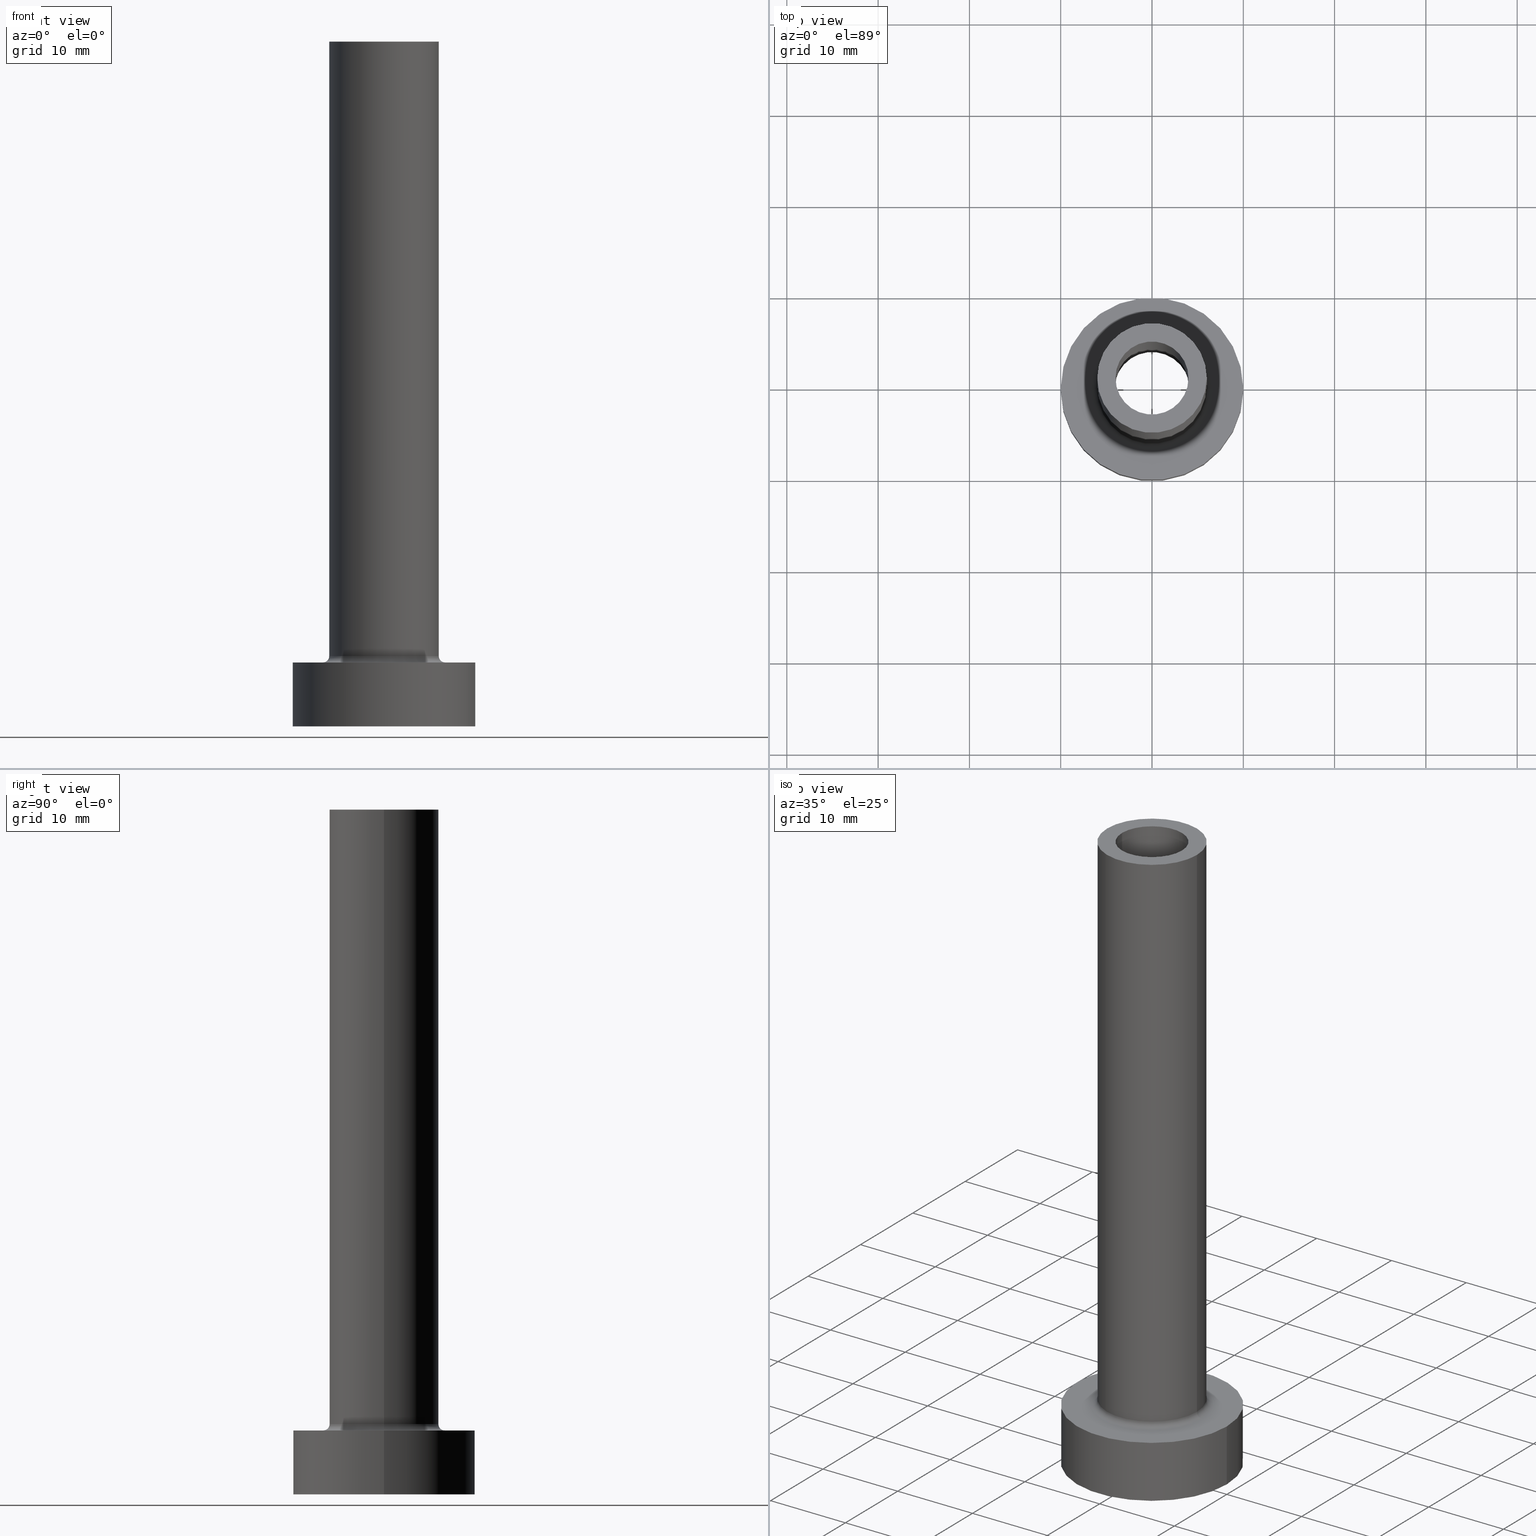
[diagram: canonical four-view strip — front | top / right | iso, engineering-drawing reading convention]
A machine part, canonical four-view strip (front | top / right | iso — engineering-drawing reading convention). The complete STEP part file that produces these views, byte-faithful:
ISO-10303-21;
HEADER;
FILE_DESCRIPTION (( 'STEP AP203' ),
    '1' );
FILE_NAME ('648c.STEP',
    '2023-02-13T12:47:31',
    ( '' ),
    ( '' ),
    'SwSTEP 2.0',
    'SolidWorks 2019',
    '' );
FILE_SCHEMA (( 'CONFIG_CONTROL_DESIGN' ));
ENDSEC;

DATA;
#1 = AXIS2_PLACEMENT_3D ( 'NONE', #377, #356, #352 ) ;
#2 = VERTEX_POINT ( 'NONE', #180 ) ;
#3 = ORIENTED_EDGE ( 'NONE', *, *, #368, .T. ) ;
#4 = ADVANCED_FACE ( 'NONE', ( #292, #119 ), #12, .T. ) ;
#5 = ORIENTED_EDGE ( 'NONE', *, *, #26, .T. ) ;
#6 = CARTESIAN_POINT ( 'NONE',  ( 0.000000000000000000, 0.000000000000000000, 41.73797256769670838 ) ) ;
#7 = ORIENTED_EDGE ( 'NONE', *, *, #275, .F. ) ;
#8 = DATE_TIME_ROLE ( 'creation_date' ) ;
#9 = VERTEX_POINT ( 'NONE', #399 ) ;
#10 = VERTEX_POINT ( 'NONE', #187 ) ;
#11 = APPROVAL_STATUS ( 'not_yet_approved' ) ;
#12 = PLANE ( 'NONE',  #133 ) ;
#13 = AXIS2_PLACEMENT_3D ( 'NONE', #136, #22, #405 ) ;
#14 = ORIENTED_EDGE ( 'NONE', *, *, #275, .T. ) ;
#15 = PRODUCT_RELATED_PRODUCT_CATEGORY ( 'detail', '', ( #30 ) ) ;
#16 = DIRECTION ( 'NONE',  ( 0.000000000000000000, 0.000000000000000000, -1.000000000000000000 ) ) ;
#17 = EDGE_CURVE ( 'NONE', #179, #93, #357, .T. ) ;
#18 = LINE ( 'NONE', #234, #20 ) ;
#19 = VERTEX_POINT ( 'NONE', #330 ) ;
#20 = VECTOR ( 'NONE', #371, 1000.000000000000000 ) ;
#21 = CC_DESIGN_APPROVAL ( #288, ( #74 ) ) ;
#22 = DIRECTION ( 'NONE',  ( 0.000000000000000000, 0.000000000000000000, 1.000000000000000000 ) ) ;
#23 = CARTESIAN_POINT ( 'NONE',  ( 4.000000000000000000, 4.898587196589411843E-16, 75.00000000000001421 ) ) ;
#24 = APPLICATION_CONTEXT ( 'configuration controlled 3d designs of mechanical parts and assemblies' ) ;
#25 = DIRECTION ( 'NONE',  ( -0.000000000000000000, -0.000000000000000000, -1.000000000000000000 ) ) ;
#26 = EDGE_CURVE ( 'NONE', #61, #53, #383, .T. ) ;
#27 = DIRECTION ( 'NONE',  ( -0.000000000000000000, -0.000000000000000000, -1.000000000000000000 ) ) ;
#28 = DIRECTION ( 'NONE',  ( 1.000000000000000000, 0.000000000000000000, 0.000000000000000000 ) ) ;
#29 = EDGE_CURVE ( 'NONE', #9, #10, #445, .T. ) ;
#30 = PRODUCT ( '648c', '648c', '', ( #115 ) ) ;
#31 = ADVANCED_BREP_SHAPE_REPRESENTATION ( '648c', ( #447, #396 ), #319 ) ;
#32 = CARTESIAN_POINT ( 'NONE',  ( 0.000000000000000000, 0.000000000000000000, 7.000000000000000000 ) ) ;
#33 = CIRCLE ( 'NONE', #325, 10.00000000000000000 ) ;
#34 = EDGE_LOOP ( 'NONE', ( #459, #420 ) ) ;
#35 = CARTESIAN_POINT ( 'NONE',  ( -4.000000000000000000, 0.000000000000000000, 75.00000000000001421 ) ) ;
#36 = CLOSED_SHELL ( 'NONE', ( #96, #181, #170, #139, #328, #135, #294, #49, #355, #4, #322, #417, #39, #316 ) ) ;
#37 = CARTESIAN_POINT ( 'NONE',  ( 0.000000000000000000, 0.000000000000000000, 30.00000000000001421 ) ) ;
#38 = DIRECTION ( 'NONE',  ( 0.000000000000000000, 0.000000000000000000, -1.000000000000000000 ) ) ;
#39 = ADVANCED_FACE ( 'NONE', ( #261, #431 ), #158, .F. ) ;
#40 = ORIENTED_EDGE ( 'NONE', *, *, #303, .F. ) ;
#41 = ORIENTED_EDGE ( 'NONE', *, *, #441, .T. ) ;
#42 = AXIS2_PLACEMENT_3D ( 'NONE', #429, #321, #220 ) ;
#43 = PERSON_AND_ORGANIZATION ( #148, #67 ) ;
#44 = CIRCLE ( 'NONE', #353, 10.00000000000000000 ) ;
#45 = ORIENTED_EDGE ( 'NONE', *, *, #103, .F. ) ;
#46 = DIRECTION ( 'NONE',  ( -1.000000000000000000, 0.000000000000000000, 0.000000000000000000 ) ) ;
#47 = DIRECTION ( 'NONE',  ( 0.000000000000000000, 0.000000000000000000, 1.000000000000000000 ) ) ;
#48 = ORIENTED_EDGE ( 'NONE', *, *, #26, .F. ) ;
#49 = ADVANCED_FACE ( 'NONE', ( #428, #191 ), #156, .F. ) ;
#50 = CALENDAR_DATE ( 2023, 13, 2 ) ;
#51 = ORIENTED_EDGE ( 'NONE', *, *, #361, .F. ) ;
#52 = ORIENTED_EDGE ( 'NONE', *, *, #235, .T. ) ;
#53 = VERTEX_POINT ( 'NONE', #389 ) ;
#54 = TOROIDAL_SURFACE ( 'NONE', #13, 6.700000000000001066, 0.6999999999999999556 ) ;
#55 = ORIENTED_EDGE ( 'NONE', *, *, #69, .T. ) ;
#56 = APPROVAL_STATUS ( 'not_yet_approved' ) ;
#57 = CARTESIAN_POINT ( 'NONE',  ( 4.150000000000000355, 5.082284216461515156E-16, 30.00000000000001421 ) ) ;
#58 = DIRECTION ( 'NONE',  ( -0.000000000000000000, -0.000000000000000000, -1.000000000000000000 ) ) ;
#59 = CARTESIAN_POINT ( 'NONE',  ( -10.00000000000000000, 0.000000000000000000, 7.000000000000000000 ) ) ;
#60 = APPROVAL_PERSON_ORGANIZATION ( #118, #288, #154 ) ;
#61 = VERTEX_POINT ( 'NONE', #92 ) ;
#62 = CARTESIAN_POINT ( 'NONE',  ( 0.000000000000000000, 0.000000000000000000, 41.73797256769670838 ) ) ;
#63 = EDGE_CURVE ( 'NONE', #179, #279, #219, .T. ) ;
#64 = DIRECTION ( 'NONE',  ( -0.000000000000000000, -0.000000000000000000, -1.000000000000000000 ) ) ;
#65 = ORIENTED_EDGE ( 'NONE', *, *, #212, .T. ) ;
#66 = DIRECTION ( 'NONE',  ( 1.000000000000000000, 0.000000000000000000, 0.000000000000000000 ) ) ;
#67 = ORGANIZATION ( 'NEUR�EN�', 'NEUR�EN�', '' ) ;
#68 = DIRECTION ( 'NONE',  ( -0.000000000000000000, -0.000000000000000000, -1.000000000000000000 ) ) ;
#69 = EDGE_CURVE ( 'NONE', #279, #385, #99, .T. ) ;
#70 = FACE_OUTER_BOUND ( 'NONE', #289, .T. ) ;
#71 = CARTESIAN_POINT ( 'NONE',  ( 0.000000000000000000, 0.000000000000000000, 7.699999999999998401 ) ) ;
#72 = AXIS2_PLACEMENT_3D ( 'NONE', #454, #141, #167 ) ;
#73 = ORIENTED_EDGE ( 'NONE', *, *, #69, .F. ) ;
#74 = PRODUCT_DEFINITION_FORMATION_WITH_SPECIFIED_SOURCE ( 'LIBOVOLN�', '', #30, .NOT_KNOWN. ) ;
#75 = DIRECTION ( 'NONE',  ( 0.000000000000000000, 0.000000000000000000, 1.000000000000000000 ) ) ;
#76 = EDGE_CURVE ( 'NONE', #93, #385, #365, .T. ) ;
#77 =( LENGTH_UNIT ( ) NAMED_UNIT ( * ) SI_UNIT ( .MILLI., .METRE. ) );
#78 = VERTEX_POINT ( 'NONE', #57 ) ;
#79 = EDGE_LOOP ( 'NONE', ( #73, #124, #120, #174 ) ) ;
#80 = COORDINATED_UNIVERSAL_TIME_OFFSET ( 1, 0, .AHEAD. ) ;
#81 = DIRECTION ( 'NONE',  ( 1.000000000000000000, 0.000000000000000000, 0.000000000000000000 ) ) ;
#82 = AXIS2_PLACEMENT_3D ( 'NONE', #249, #171, #281 ) ;
#83 = DIRECTION ( 'NONE',  ( 0.000000000000000000, 0.000000000000000000, 1.000000000000000000 ) ) ;
#84 = LOCAL_TIME ( 13, 47, 31.00000000000000000, #80 ) ;
#85 = EDGE_LOOP ( 'NONE', ( #285, #3, #359, #260 ) ) ;
#86 = CC_DESIGN_PERSON_AND_ORGANIZATION_ASSIGNMENT ( #229, #143, ( #74 ) ) ;
#87 = DIRECTION ( 'NONE',  ( 1.000000000000000000, 0.000000000000000000, 0.000000000000000000 ) ) ;
#88 = DIRECTION ( 'NONE',  ( 0.000000000000000000, 0.000000000000000000, 1.000000000000000000 ) ) ;
#89 = CC_DESIGN_DATE_AND_TIME_ASSIGNMENT ( #237, #448, ( #397 ) ) ;
#90 = AXIS2_PLACEMENT_3D ( 'NONE', #201, #238, #126 ) ;
#91 = PERSON_AND_ORGANIZATION_ROLE ( 'creator' ) ;
#92 = CARTESIAN_POINT ( 'NONE',  ( -4.000000000000000000, 0.000000000000000000, 30.00000000000001421 ) ) ;
#93 = VERTEX_POINT ( 'NONE', #202 ) ;
#94 = DIRECTION ( 'NONE',  ( 1.000000000000000000, 0.000000000000000000, 0.000000000000000000 ) ) ;
#95 = CIRCLE ( 'NONE', #1, 4.000000000000000000 ) ;
#96 = ADVANCED_FACE ( 'NONE', ( #100 ), #414, .F. ) ;
#97 = DIRECTION ( 'NONE',  ( -0.000000000000000000, -0.000000000000000000, -1.000000000000000000 ) ) ;
#98 = DATE_AND_TIME ( #266, #439 ) ;
#99 = CIRCLE ( 'NONE', #446, 0.7000000000000000666 ) ;
#100 = FACE_OUTER_BOUND ( 'NONE', #324, .T. ) ;
#101 = DIRECTION ( 'NONE',  ( 1.000000000000000000, 0.000000000000000000, 0.000000000000000000 ) ) ;
#102 = CIRCLE ( 'NONE', #304, 4.150000000000000355 ) ;
#103 = EDGE_CURVE ( 'NONE', #393, #2, #284, .T. ) ;
#104 = ORIENTED_EDGE ( 'NONE', *, *, #235, .F. ) ;
#105 = FACE_OUTER_BOUND ( 'NONE', #379, .T. ) ;
#106 = CARTESIAN_POINT ( 'NONE',  ( -6.700000000000001066, 8.205133554287267548E-16, 6.999999999999999112 ) ) ;
#107 = DIRECTION ( 'NONE',  ( 1.000000000000000000, 0.000000000000000000, 0.000000000000000000 ) ) ;
#108 = DIRECTION ( 'NONE',  ( 0.000000000000000000, 0.000000000000000000, 1.000000000000000000 ) ) ;
#109 = DIRECTION ( 'NONE',  ( 0.000000000000000000, 0.000000000000000000, 1.000000000000000000 ) ) ;
#110 = DIRECTION ( 'NONE',  ( 0.000000000000000000, 0.000000000000000000, -1.000000000000000000 ) ) ;
#111 = EDGE_CURVE ( 'NONE', #19, #9, #232, .T. ) ;
#112 = AXIS2_PLACEMENT_3D ( 'NONE', #198, #140, #276 ) ;
#113 = APPROVAL_DATE_TIME ( #329, #280 ) ;
#114 = CARTESIAN_POINT ( 'NONE',  ( 0.000000000000000000, 0.000000000000000000, 7.699999999999998401 ) ) ;
#115 = MECHANICAL_CONTEXT ( 'NONE', #24, 'mechanical' ) ;
#116 = ORIENTED_EDGE ( 'NONE', *, *, #207, .T. ) ;
#117 = AXIS2_PLACEMENT_3D ( 'NONE', #152, #185, #38 ) ;
#118 = PERSON_AND_ORGANIZATION ( #148, #67 ) ;
#119 = FACE_OUTER_BOUND ( 'NONE', #34, .T. ) ;
#120 = ORIENTED_EDGE ( 'NONE', *, *, #17, .T. ) ;
#121 = APPROVAL_DATE_TIME ( #293, #288 ) ;
#122 = CARTESIAN_POINT ( 'NONE',  ( 0.000000000000000000, 0.000000000000000000, 30.00000000000001421 ) ) ;
#123 = DIRECTION ( 'NONE',  ( 0.000000000000000000, 0.000000000000000000, 1.000000000000000000 ) ) ;
#124 = ORIENTED_EDGE ( 'NONE', *, *, #63, .F. ) ;
#125 = PERSON_AND_ORGANIZATION ( #148, #67 ) ;
#126 = DIRECTION ( 'NONE',  ( -1.000000000000000000, 0.000000000000000000, 0.000000000000000000 ) ) ;
#127 = EDGE_CURVE ( 'NONE', #409, #61, #336, .T. ) ;
#128 = CARTESIAN_POINT ( 'NONE',  ( -6.000000000000000888, 0.000000000000000000, 75.00000000000001421 ) ) ;
#129 = ORIENTED_EDGE ( 'NONE', *, *, #250, .F. ) ;
#130 = VECTOR ( 'NONE', #456, 1000.000000000000000 ) ;
#131 = ORIENTED_EDGE ( 'NONE', *, *, #194, .T. ) ;
#132 = DIRECTION ( 'NONE',  ( 0.000000000000000000, 0.000000000000000000, 1.000000000000000000 ) ) ;
#133 = AXIS2_PLACEMENT_3D ( 'NONE', #402, #47, #358 ) ;
#134 = CARTESIAN_POINT ( 'NONE',  ( 0.000000000000000000, 0.000000000000000000, 75.00000000000001421 ) ) ;
#135 = ADVANCED_FACE ( 'NONE', ( #105 ), #269, .T. ) ;
#136 = CARTESIAN_POINT ( 'NONE',  ( 0.000000000000000000, 0.000000000000000000, 7.699999999999998401 ) ) ;
#137 = FACE_OUTER_BOUND ( 'NONE', #79, .T. ) ;
#138 = DIRECTION ( 'NONE',  ( 0.000000000000000000, 0.000000000000000000, 1.000000000000000000 ) ) ;
#139 = ADVANCED_FACE ( 'NONE', ( #312 ), #272, .T. ) ;
#140 = DIRECTION ( 'NONE',  ( 0.000000000000000000, 0.000000000000000000, 1.000000000000000000 ) ) ;
#141 = DIRECTION ( 'NONE',  ( 0.000000000000000000, 0.000000000000000000, 1.000000000000000000 ) ) ;
#142 = CARTESIAN_POINT ( 'NONE',  ( 6.000000000000000888, 7.347880794884120722E-16, 75.00000000000001421 ) ) ;
#143 = PERSON_AND_ORGANIZATION_ROLE ( 'design_supplier' ) ;
#144 = CIRCLE ( 'NONE', #208, 4.150000000000000355 ) ;
#145 = ORIENTED_EDGE ( 'NONE', *, *, #29, .T. ) ;
#146 = CARTESIAN_POINT ( 'NONE',  ( 0.000000000000000000, 0.000000000000000000, 0.000000000000000000 ) ) ;
#147 = CC_DESIGN_PERSON_AND_ORGANIZATION_ASSIGNMENT ( #432, #391, ( #30 ) ) ;
#148 = PERSON ( 'NEUR�EN�', 'NEUR�EN�', 'NEUR�EN�', ('NEUR�EN�'), ('NEUR�EN�'), ('NEUR�EN�') ) ;
#149 = DATE_AND_TIME ( #224, #155 ) ;
#150 = EDGE_LOOP ( 'NONE', ( #223, #406 ) ) ;
#151 = ORIENTED_EDGE ( 'NONE', *, *, #175, .F. ) ;
#152 = CARTESIAN_POINT ( 'NONE',  ( 6.700000000000001066, 0.000000000000000000, 7.699999999999998401 ) ) ;
#153 = AXIS2_PLACEMENT_3D ( 'NONE', #318, #138, #350 ) ;
#154 = APPROVAL_ROLE ( '' ) ;
#155 = LOCAL_TIME ( 13, 47, 31.00000000000000000, #363 ) ;
#156 = PLANE ( 'NONE',  #299 ) ;
#157 = EDGE_LOOP ( 'NONE', ( #177, #40 ) ) ;
#158 = PLANE ( 'NONE',  #410 ) ;
#159 = PRODUCT_DEFINITION ( 'NEZN�M�', '', #74, #271 ) ;
#160 = DIRECTION ( 'NONE',  ( 0.000000000000000000, 0.000000000000000000, -1.000000000000000000 ) ) ;
#161 = AXIS2_PLACEMENT_3D ( 'NONE', #71, #75, #169 ) ;
#162 = CARTESIAN_POINT ( 'NONE',  ( 6.000000000000000888, 7.347880794884120722E-16, 7.699999999999998401 ) ) ;
#163 = CC_DESIGN_PERSON_AND_ORGANIZATION_ASSIGNMENT ( #401, #91, ( #74 ) ) ;
#164 = DIRECTION ( 'NONE',  ( -1.000000000000000000, 1.224646799147353454E-16, 0.000000000000000000 ) ) ;
#165 = AXIS2_PLACEMENT_3D ( 'NONE', #241, #449, #94 ) ;
#166 = CARTESIAN_POINT ( 'NONE',  ( 0.000000000000000000, 0.000000000000000000, 7.000000000000000000 ) ) ;
#167 = DIRECTION ( 'NONE',  ( 1.000000000000000000, 0.000000000000000000, 0.000000000000000000 ) ) ;
#168 = APPROVAL_PERSON_ORGANIZATION ( #193, #346, #404 ) ;
#169 = DIRECTION ( 'NONE',  ( 1.000000000000000000, 0.000000000000000000, 0.000000000000000000 ) ) ;
#170 = ADVANCED_FACE ( 'NONE', ( #369 ), #54, .F. ) ;
#171 = DIRECTION ( 'NONE',  ( -0.000000000000000000, -0.000000000000000000, -1.000000000000000000 ) ) ;
#172 = EDGE_LOOP ( 'NONE', ( #7, #425, #65, #297 ) ) ;
#173 = LINE ( 'NONE', #251, #130 ) ;
#174 = ORIENTED_EDGE ( 'NONE', *, *, #194, .F. ) ;
#175 = EDGE_CURVE ( 'NONE', #364, #19, #33, .T. ) ;
#176 = CARTESIAN_POINT ( 'NONE',  ( 0.000000000000000000, 0.000000000000000000, 7.000000000000000000 ) ) ;
#177 = ORIENTED_EDGE ( 'NONE', *, *, #228, .F. ) ;
#178 = CARTESIAN_POINT ( 'NONE',  ( 0.000000000000000000, 0.000000000000000000, 0.000000000000000000 ) ) ;
#179 = VERTEX_POINT ( 'NONE', #162 ) ;
#180 = CARTESIAN_POINT ( 'NONE',  ( -6.000000000000000888, 0.000000000000000000, 75.00000000000001421 ) ) ;
#181 = ADVANCED_FACE ( 'NONE', ( #444 ), #274, .F. ) ;
#182 = AXIS2_PLACEMENT_3D ( 'NONE', #408, #58, #267 ) ;
#183 = CC_DESIGN_SECURITY_CLASSIFICATION ( #397, ( #74 ) ) ;
#184 = PERSON_AND_ORGANIZATION_ROLE ( 'creator' ) ;
#185 = DIRECTION ( 'NONE',  ( 0.000000000000000000, -1.000000000000000000, 0.000000000000000000 ) ) ;
#186 = CC_DESIGN_PERSON_AND_ORGANIZATION_ASSIGNMENT ( #125, #233, ( #397 ) ) ;
#187 = CARTESIAN_POINT ( 'NONE',  ( 10.00000000000000000, 1.224646799147353256E-15, 0.000000000000000000 ) ) ;
#188 = AXIS2_PLACEMENT_3D ( 'NONE', #366, #295, #81 ) ;
#189 = EDGE_LOOP ( 'NONE', ( #215, #41, #395, #326 ) ) ;
#190 = DIRECTION ( 'NONE',  ( 1.000000000000000000, 0.000000000000000000, 0.000000000000000000 ) ) ;
#191 = FACE_OUTER_BOUND ( 'NONE', #255, .T. ) ;
#192 = CIRCLE ( 'NONE', #42, 4.000000000000000000 ) ;
#193 = PERSON_AND_ORGANIZATION ( #148, #67 ) ;
#194 = EDGE_CURVE ( 'NONE', #385, #93, #450, .T. ) ;
#195 = DIRECTION ( 'NONE',  ( 0.000000000000000000, 0.000000000000000000, 1.000000000000000000 ) ) ;
#196 = VERTEX_POINT ( 'NONE', #23 ) ;
#197 = DIRECTION ( 'NONE',  ( 0.000000000000000000, 0.000000000000000000, -1.000000000000000000 ) ) ;
#198 = CARTESIAN_POINT ( 'NONE',  ( 0.000000000000000000, 0.000000000000000000, 75.00000000000001421 ) ) ;
#199 = CC_DESIGN_PERSON_AND_ORGANIZATION_ASSIGNMENT ( #43, #184, ( #159 ) ) ;
#200 = CIRCLE ( 'NONE', #72, 10.00000000000000000 ) ;
#201 = CARTESIAN_POINT ( 'NONE',  ( 0.000000000000000000, 0.000000000000000000, 75.00000000000001421 ) ) ;
#202 = CARTESIAN_POINT ( 'NONE',  ( 6.700000000000001066, 0.000000000000000000, 6.999999999999999112 ) ) ;
#203 = LINE ( 'NONE', #128, #222 ) ;
#204 = ORIENTED_EDGE ( 'NONE', *, *, #17, .F. ) ;
#205 = ORIENTED_EDGE ( 'NONE', *, *, #207, .F. ) ;
#206 = CYLINDRICAL_SURFACE ( 'NONE', #231, 10.00000000000000000 ) ;
#207 = EDGE_CURVE ( 'NONE', #196, #53, #243, .T. ) ;
#208 = AXIS2_PLACEMENT_3D ( 'NONE', #37, #123, #217 ) ;
#209 = ORIENTED_EDGE ( 'NONE', *, *, #212, .F. ) ;
#210 = DIRECTION ( 'NONE',  ( 0.000000000000000000, 0.000000000000000000, 1.000000000000000000 ) ) ;
#211 = CARTESIAN_POINT ( 'NONE',  ( -6.000000000000000888, 0.000000000000000000, 7.699999999999998401 ) ) ;
#212 = EDGE_CURVE ( 'NONE', #2, #279, #203, .T. ) ;
#213 = CARTESIAN_POINT ( 'NONE',  ( 4.150000000000000355, 5.082284216461515156E-16, 41.73797256769670838 ) ) ;
#214 = AXIS2_PLACEMENT_3D ( 'NONE', #422, #109, #66 ) ;
#215 = ORIENTED_EDGE ( 'NONE', *, *, #368, .F. ) ;
#216 = DIRECTION ( 'NONE',  ( -0.000000000000000000, -0.000000000000000000, -1.000000000000000000 ) ) ;
#217 = DIRECTION ( 'NONE',  ( 1.000000000000000000, 0.000000000000000000, 0.000000000000000000 ) ) ;
#218 = EDGE_LOOP ( 'NONE', ( #205, #311, #372, #460 ) ) ;
#219 = CIRCLE ( 'NONE', #236, 6.000000000000000888 ) ;
#220 = DIRECTION ( 'NONE',  ( 1.000000000000000000, 0.000000000000000000, 0.000000000000000000 ) ) ;
#221 = DIRECTION ( 'NONE',  ( 1.000000000000000000, 0.000000000000000000, 0.000000000000000000 ) ) ;
#222 = VECTOR ( 'NONE', #64, 1000.000000000000000 ) ;
#223 = ORIENTED_EDGE ( 'NONE', *, *, #434, .F. ) ;
#224 = CALENDAR_DATE ( 2023, 13, 2 ) ;
#225 = EDGE_LOOP ( 'NONE', ( #5, #457 ) ) ;
#226 =( NAMED_UNIT ( * ) PLANE_ANGLE_UNIT ( ) SI_UNIT ( $, .RADIAN. ) );
#227 = EDGE_LOOP ( 'NONE', ( #45, #14, #430, #209 ) ) ;
#228 = EDGE_CURVE ( 'NONE', #333, #302, #287, .T. ) ;
#229 = PERSON_AND_ORGANIZATION ( #148, #67 ) ;
#230 = ORIENTED_EDGE ( 'NONE', *, *, #111, .T. ) ;
#231 = AXIS2_PLACEMENT_3D ( 'NONE', #32, #216, #382 ) ;
#232 = LINE ( 'NONE', #59, #419 ) ;
#233 = PERSON_AND_ORGANIZATION_ROLE ( 'classification_officer' ) ;
#234 = CARTESIAN_POINT ( 'NONE',  ( 10.00000000000000000, 1.224646799147353256E-15, 7.000000000000000000 ) ) ;
#235 = EDGE_CURVE ( 'NONE', #364, #10, #18, .T. ) ;
#236 = AXIS2_PLACEMENT_3D ( 'NONE', #114, #254, #273 ) ;
#237 = DATE_AND_TIME ( #370, #413 ) ;
#238 = DIRECTION ( 'NONE',  ( 0.000000000000000000, 0.000000000000000000, -1.000000000000000000 ) ) ;
#239 = APPROVAL_DATE_TIME ( #98, #346 ) ;
#240 = CIRCLE ( 'NONE', #161, 6.000000000000000888 ) ;
#241 = CARTESIAN_POINT ( 'NONE',  ( 0.000000000000000000, 0.000000000000000000, 75.00000000000001421 ) ) ;
#242 = CC_DESIGN_APPROVAL ( #346, ( #397 ) ) ;
#243 = LINE ( 'NONE', #376, #247 ) ;
#244 = EDGE_CURVE ( 'NONE', #2, #393, #412, .T. ) ;
#245 = CARTESIAN_POINT ( 'NONE',  ( -4.150000000000000355, 0.000000000000000000, 0.000000000000000000 ) ) ;
#246 = FACE_OUTER_BOUND ( 'NONE', #218, .T. ) ;
#247 = VECTOR ( 'NONE', #160, 1000.000000000000000 ) ;
#248 = AXIS2_PLACEMENT_3D ( 'NONE', #278, #68, #416 ) ;
#249 = CARTESIAN_POINT ( 'NONE',  ( 0.000000000000000000, 0.000000000000000000, 0.000000000000000000 ) ) ;
#250 = EDGE_CURVE ( 'NONE', #19, #364, #44, .T. ) ;
#251 = CARTESIAN_POINT ( 'NONE',  ( -4.150000000000000355, 0.000000000000000000, 41.73797256769670838 ) ) ;
#252 = AXIS2_PLACEMENT_3D ( 'NONE', #436, #373, #101 ) ;
#253 = FACE_OUTER_BOUND ( 'NONE', #309, .T. ) ;
#254 = DIRECTION ( 'NONE',  ( 0.000000000000000000, 0.000000000000000000, 1.000000000000000000 ) ) ;
#255 = EDGE_LOOP ( 'NONE', ( #332, #262 ) ) ;
#256 = ORIENTED_EDGE ( 'NONE', *, *, #441, .F. ) ;
#257 = COORDINATED_UNIVERSAL_TIME_OFFSET ( 1, 0, .AHEAD. ) ;
#258 = ORIENTED_EDGE ( 'NONE', *, *, #434, .T. ) ;
#259 = AXIS2_PLACEMENT_3D ( 'NONE', #62, #16, #344 ) ;
#260 = ORIENTED_EDGE ( 'NONE', *, *, #343, .F. ) ;
#261 = FACE_BOUND ( 'NONE', #225, .T. ) ;
#262 = ORIENTED_EDGE ( 'NONE', *, *, #268, .F. ) ;
#263 = APPLICATION_PROTOCOL_DEFINITION ( 'international standard', 'config_control_design', 1994, #415 ) ;
#264 = DIRECTION ( 'NONE',  ( 1.000000000000000000, 0.000000000000000000, -0.000000000000000000 ) ) ;
#265 = ORIENTED_EDGE ( 'NONE', *, *, #403, .F. ) ;
#266 = CALENDAR_DATE ( 2023, 13, 2 ) ;
#267 = DIRECTION ( 'NONE',  ( 1.000000000000000000, 0.000000000000000000, 0.000000000000000000 ) ) ;
#268 = EDGE_CURVE ( 'NONE', #10, #9, #200, .T. ) ;
#269 = CYLINDRICAL_SURFACE ( 'NONE', #455, 10.00000000000000000 ) ;
#270 = PRODUCT_DEFINITION_SHAPE ( 'NONE', 'NONE',  #159 ) ;
#271 = DESIGN_CONTEXT ( 'detailed design', #415, 'design' ) ;
#272 = CYLINDRICAL_SURFACE ( 'NONE', #438, 6.000000000000000888 ) ;
#273 = DIRECTION ( 'NONE',  ( 1.000000000000000000, 0.000000000000000000, 0.000000000000000000 ) ) ;
#274 = CYLINDRICAL_SURFACE ( 'NONE', #259, 4.150000000000000355 ) ;
#275 = EDGE_CURVE ( 'NONE', #393, #179, #421, .T. ) ;
#276 = DIRECTION ( 'NONE',  ( 1.000000000000000000, 0.000000000000000000, 0.000000000000000000 ) ) ;
#277 = ORIENTED_EDGE ( 'NONE', *, *, #268, .T. ) ;
#278 = CARTESIAN_POINT ( 'NONE',  ( 0.000000000000000000, 0.000000000000000000, 75.00000000000001421 ) ) ;
#279 = VERTEX_POINT ( 'NONE', #211 ) ;
#280 = APPROVAL ( #11, 'NEUR�EN�' ) ;
#281 = DIRECTION ( 'NONE',  ( 1.000000000000000000, 0.000000000000000000, 0.000000000000000000 ) ) ;
#282 = CIRCLE ( 'NONE', #82, 4.150000000000000355 ) ;
#283 = DIRECTION ( 'NONE',  ( -1.000000000000000000, 0.000000000000000000, 0.000000000000000000 ) ) ;
#284 = CIRCLE ( 'NONE', #165, 6.000000000000000888 ) ;
#285 = ORIENTED_EDGE ( 'NONE', *, *, #403, .T. ) ;
#286 = APPROVAL_ROLE ( '' ) ;
#287 = CIRCLE ( 'NONE', #313, 4.150000000000000355 ) ;
#288 = APPROVAL ( #398, 'NEUR�EN�' ) ;
#289 = EDGE_LOOP ( 'NONE', ( #151, #52, #277, #339 ) ) ;
#290 = DIRECTION ( 'NONE',  ( 0.000000000000000000, 0.000000000000000000, -1.000000000000000000 ) ) ;
#291 = DIRECTION ( 'NONE',  ( 1.000000000000000000, 0.000000000000000000, -0.000000000000000000 ) ) ;
#292 = FACE_BOUND ( 'NONE', #150, .T. ) ;
#293 = DATE_AND_TIME ( #394, #381 ) ;
#294 = ADVANCED_FACE ( 'NONE', ( #351, #253 ), #320, .T. ) ;
#295 = DIRECTION ( 'NONE',  ( 0.000000000000000000, 0.000000000000000000, 1.000000000000000000 ) ) ;
#296 = CARTESIAN_POINT ( 'NONE',  ( 0.000000000000000000, 0.000000000000000000, 75.00000000000001421 ) ) ;
#297 = ORIENTED_EDGE ( 'NONE', *, *, #361, .T. ) ;
#298 = DIRECTION ( 'NONE',  ( 1.000000000000000000, 0.000000000000000000, 0.000000000000000000 ) ) ;
#299 = AXIS2_PLACEMENT_3D ( 'NONE', #433, #195, #264 ) ;
#300 = COORDINATED_UNIVERSAL_TIME_OFFSET ( 1, 0, .AHEAD. ) ;
#301 = DIRECTION ( 'NONE',  ( 1.000000000000000000, 0.000000000000000000, 0.000000000000000000 ) ) ;
#302 = VERTEX_POINT ( 'NONE', #314 ) ;
#303 = EDGE_CURVE ( 'NONE', #302, #333, #282, .T. ) ;
#304 = AXIS2_PLACEMENT_3D ( 'NONE', #315, #210, #107 ) ;
#305 = APPROVAL_PERSON_ORGANIZATION ( #461, #280, #286 ) ;
#306 = COORDINATED_UNIVERSAL_TIME_OFFSET ( 1, 0, .AHEAD. ) ;
#307 = DIRECTION ( 'NONE',  ( 1.224646799147353207E-16, 1.000000000000000000, -0.000000000000000000 ) ) ;
#308 = SHAPE_DEFINITION_REPRESENTATION ( #270, #31 ) ;
#309 = EDGE_LOOP ( 'NONE', ( #327, #337 ) ) ;
#310 = DIRECTION ( 'NONE',  ( -1.000000000000000000, 0.000000000000000000, 0.000000000000000000 ) ) ;
#311 = ORIENTED_EDGE ( 'NONE', *, *, #423, .T. ) ;
#312 = FACE_OUTER_BOUND ( 'NONE', #227, .T. ) ;
#313 = AXIS2_PLACEMENT_3D ( 'NONE', #345, #97, #298 ) ;
#314 = CARTESIAN_POINT ( 'NONE',  ( 4.150000000000000355, 5.082284216461515156E-16, 0.000000000000000000 ) ) ;
#315 = CARTESIAN_POINT ( 'NONE',  ( 0.000000000000000000, 0.000000000000000000, 30.00000000000001421 ) ) ;
#316 = ADVANCED_FACE ( 'NONE', ( #246 ), #380, .F. ) ;
#317 = CARTESIAN_POINT ( 'NONE',  ( -4.150000000000000355, 0.000000000000000000, 30.00000000000001421 ) ) ;
#318 = CARTESIAN_POINT ( 'NONE',  ( 0.000000000000000000, 0.000000000000000000, 7.000000000000000000 ) ) ;
#319 =( GEOMETRIC_REPRESENTATION_CONTEXT ( 3 ) GLOBAL_UNCERTAINTY_ASSIGNED_CONTEXT ( ( #349 ) ) GLOBAL_UNIT_ASSIGNED_CONTEXT ( ( #77, #226, #323 ) ) REPRESENTATION_CONTEXT ( 'NONE', 'WORKASPACE' ) );
#320 = PLANE ( 'NONE',  #153 ) ;
#321 = DIRECTION ( 'NONE',  ( 0.000000000000000000, 0.000000000000000000, 1.000000000000000000 ) ) ;
#322 = ADVANCED_FACE ( 'NONE', ( #137 ), #334, .F. ) ;
#323 =( NAMED_UNIT ( * ) SI_UNIT ( $, .STERADIAN. ) SOLID_ANGLE_UNIT ( ) );
#324 = EDGE_LOOP ( 'NONE', ( #258, #116, #48, #400 ) ) ;
#325 = AXIS2_PLACEMENT_3D ( 'NONE', #166, #132, #301 ) ;
#326 = ORIENTED_EDGE ( 'NONE', *, *, #228, .T. ) ;
#327 = ORIENTED_EDGE ( 'NONE', *, *, #250, .T. ) ;
#328 = ADVANCED_FACE ( 'NONE', ( #70 ), #206, .T. ) ;
#329 = DATE_AND_TIME ( #50, #84 ) ;
#330 = CARTESIAN_POINT ( 'NONE',  ( -10.00000000000000000, 0.000000000000000000, 7.000000000000000000 ) ) ;
#331 = CYLINDRICAL_SURFACE ( 'NONE', #340, 4.150000000000000355 ) ;
#332 = ORIENTED_EDGE ( 'NONE', *, *, #29, .F. ) ;
#333 = VERTEX_POINT ( 'NONE', #245 ) ;
#334 = TOROIDAL_SURFACE ( 'NONE', #214, 6.700000000000001066, 0.6999999999999999556 ) ;
#335 = DIRECTION ( 'NONE',  ( 0.000000000000000000, 0.000000000000000000, 1.000000000000000000 ) ) ;
#336 = LINE ( 'NONE', #375, #378 ) ;
#337 = ORIENTED_EDGE ( 'NONE', *, *, #175, .T. ) ;
#338 = DIRECTION ( 'NONE',  ( -1.000000000000000000, 0.000000000000000000, 0.000000000000000000 ) ) ;
#339 = ORIENTED_EDGE ( 'NONE', *, *, #111, .F. ) ;
#340 = AXIS2_PLACEMENT_3D ( 'NONE', #6, #290, #46 ) ;
#341 = SECURITY_CLASSIFICATION_LEVEL ( 'unclassified' ) ;
#342 = CARTESIAN_POINT ( 'NONE',  ( 0.000000000000000000, 0.000000000000000000, 7.000000000000000000 ) ) ;
#343 = EDGE_CURVE ( 'NONE', #407, #333, #173, .T. ) ;
#344 = DIRECTION ( 'NONE',  ( -1.000000000000000000, 0.000000000000000000, 0.000000000000000000 ) ) ;
#345 = CARTESIAN_POINT ( 'NONE',  ( 0.000000000000000000, 0.000000000000000000, 0.000000000000000000 ) ) ;
#346 = APPROVAL ( #56, 'NEUR�EN�' ) ;
#347 = AXIS2_PLACEMENT_3D ( 'NONE', #296, #388, #87 ) ;
#348 = CARTESIAN_POINT ( 'NONE',  ( 6.000000000000000888, 7.347880794884120722E-16, 75.00000000000001421 ) ) ;
#349 = UNCERTAINTY_MEASURE_WITH_UNIT (LENGTH_MEASURE( 1.000000000000000082E-05 ), #77, 'distance_accuracy_value', 'NONE');
#350 = DIRECTION ( 'NONE',  ( 1.000000000000000000, 0.000000000000000000, -0.000000000000000000 ) ) ;
#351 = FACE_BOUND ( 'NONE', #440, .T. ) ;
#352 = DIRECTION ( 'NONE',  ( 1.000000000000000000, 0.000000000000000000, 0.000000000000000000 ) ) ;
#353 = AXIS2_PLACEMENT_3D ( 'NONE', #176, #108, #28 ) ;
#354 = CC_DESIGN_APPROVAL ( #280, ( #159 ) ) ;
#355 = ADVANCED_FACE ( 'NONE', ( #424 ), #384, .T. ) ;
#356 = DIRECTION ( 'NONE',  ( 0.000000000000000000, 0.000000000000000000, 1.000000000000000000 ) ) ;
#357 = CIRCLE ( 'NONE', #117, 0.7000000000000000666 ) ;
#358 = DIRECTION ( 'NONE',  ( 1.000000000000000000, 0.000000000000000000, -0.000000000000000000 ) ) ;
#359 = ORIENTED_EDGE ( 'NONE', *, *, #303, .T. ) ;
#360 = AXIS2_PLACEMENT_3D ( 'NONE', #451, #110, #283 ) ;
#361 = EDGE_CURVE ( 'NONE', #279, #179, #240, .T. ) ;
#362 = ORIENTED_EDGE ( 'NONE', *, *, #76, .F. ) ;
#363 = COORDINATED_UNIVERSAL_TIME_OFFSET ( 1, 0, .AHEAD. ) ;
#364 = VERTEX_POINT ( 'NONE', #453 ) ;
#365 = CIRCLE ( 'NONE', #252, 6.700000000000001066 ) ;
#366 = CARTESIAN_POINT ( 'NONE',  ( 0.000000000000000000, 0.000000000000000000, 30.00000000000001421 ) ) ;
#367 = VECTOR ( 'NONE', #27, 1000.000000000000000 ) ;
#368 = EDGE_CURVE ( 'NONE', #78, #302, #418, .T. ) ;
#369 = FACE_OUTER_BOUND ( 'NONE', #443, .T. ) ;
#370 = CALENDAR_DATE ( 2023, 13, 2 ) ;
#371 = DIRECTION ( 'NONE',  ( -0.000000000000000000, -0.000000000000000000, -1.000000000000000000 ) ) ;
#372 = ORIENTED_EDGE ( 'NONE', *, *, #127, .T. ) ;
#373 = DIRECTION ( 'NONE',  ( -0.000000000000000000, -0.000000000000000000, -1.000000000000000000 ) ) ;
#374 = CIRCLE ( 'NONE', #347, 4.000000000000000000 ) ;
#375 = CARTESIAN_POINT ( 'NONE',  ( -4.000000000000000000, 0.000000000000000000, 75.00000000000001421 ) ) ;
#376 = CARTESIAN_POINT ( 'NONE',  ( 4.000000000000000000, 4.898587196589411843E-16, 75.00000000000001421 ) ) ;
#377 = CARTESIAN_POINT ( 'NONE',  ( 0.000000000000000000, 0.000000000000000000, 30.00000000000001421 ) ) ;
#378 = VECTOR ( 'NONE', #197, 1000.000000000000000 ) ;
#379 = EDGE_LOOP ( 'NONE', ( #104, #129, #230, #145 ) ) ;
#380 = CYLINDRICAL_SURFACE ( 'NONE', #360, 4.000000000000000000 ) ;
#381 = LOCAL_TIME ( 13, 47, 31.00000000000000000, #257 ) ;
#382 = DIRECTION ( 'NONE',  ( -1.000000000000000000, 0.000000000000000000, 0.000000000000000000 ) ) ;
#383 = CIRCLE ( 'NONE', #188, 4.000000000000000000 ) ;
#384 = CYLINDRICAL_SURFACE ( 'NONE', #248, 6.000000000000000888 ) ;
#385 = VERTEX_POINT ( 'NONE', #106 ) ;
#386 = DIRECTION ( 'NONE',  ( 0.000000000000000000, 0.000000000000000000, -1.000000000000000000 ) ) ;
#387 = VECTOR ( 'NONE', #386, 1000.000000000000000 ) ;
#388 = DIRECTION ( 'NONE',  ( 0.000000000000000000, 0.000000000000000000, 1.000000000000000000 ) ) ;
#389 = CARTESIAN_POINT ( 'NONE',  ( 4.000000000000000000, 4.898587196589411843E-16, 30.00000000000001421 ) ) ;
#390 = AXIS2_PLACEMENT_3D ( 'NONE', #146, #335, #221 ) ;
#391 = PERSON_AND_ORGANIZATION_ROLE ( 'design_owner' ) ;
#392 = EDGE_CURVE ( 'NONE', #53, #61, #95, .T. ) ;
#393 = VERTEX_POINT ( 'NONE', #348 ) ;
#394 = CALENDAR_DATE ( 2023, 13, 2 ) ;
#395 = ORIENTED_EDGE ( 'NONE', *, *, #343, .T. ) ;
#396 = AXIS2_PLACEMENT_3D ( 'NONE', #178, #83, #190 ) ;
#397 = SECURITY_CLASSIFICATION ( '', '', #341 ) ;
#398 = APPROVAL_STATUS ( 'not_yet_approved' ) ;
#399 = CARTESIAN_POINT ( 'NONE',  ( -10.00000000000000000, 0.000000000000000000, 0.000000000000000000 ) ) ;
#400 = ORIENTED_EDGE ( 'NONE', *, *, #127, .F. ) ;
#401 = PERSON_AND_ORGANIZATION ( #148, #67 ) ;
#402 = CARTESIAN_POINT ( 'NONE',  ( 0.000000000000000000, 0.000000000000000000, 75.00000000000001421 ) ) ;
#403 = EDGE_CURVE ( 'NONE', #407, #78, #102, .T. ) ;
#404 = APPROVAL_ROLE ( '' ) ;
#405 = DIRECTION ( 'NONE',  ( 1.000000000000000000, 0.000000000000000000, 0.000000000000000000 ) ) ;
#406 = ORIENTED_EDGE ( 'NONE', *, *, #423, .F. ) ;
#407 = VERTEX_POINT ( 'NONE', #317 ) ;
#408 = CARTESIAN_POINT ( 'NONE',  ( 0.000000000000000000, 0.000000000000000000, 7.000000000000000000 ) ) ;
#409 = VERTEX_POINT ( 'NONE', #35 ) ;
#410 = AXIS2_PLACEMENT_3D ( 'NONE', #122, #88, #291 ) ;
#411 = CARTESIAN_POINT ( 'NONE',  ( -6.700000000000001066, 8.205133554287267548E-16, 7.699999999999998401 ) ) ;
#412 = CIRCLE ( 'NONE', #112, 6.000000000000000888 ) ;
#413 = LOCAL_TIME ( 13, 47, 31.00000000000000000, #306 ) ;
#414 = CYLINDRICAL_SURFACE ( 'NONE', #90, 4.000000000000000000 ) ;
#415 = APPLICATION_CONTEXT ( 'configuration controlled 3d designs of mechanical parts and assemblies' ) ;
#416 = DIRECTION ( 'NONE',  ( -1.000000000000000000, 0.000000000000000000, 0.000000000000000000 ) ) ;
#417 = ADVANCED_FACE ( 'NONE', ( #458 ), #331, .F. ) ;
#418 = LINE ( 'NONE', #213, #387 ) ;
#419 = VECTOR ( 'NONE', #442, 1000.000000000000000 ) ;
#420 = ORIENTED_EDGE ( 'NONE', *, *, #103, .T. ) ;
#421 = LINE ( 'NONE', #142, #367 ) ;
#422 = CARTESIAN_POINT ( 'NONE',  ( 0.000000000000000000, 0.000000000000000000, 7.699999999999998401 ) ) ;
#423 = EDGE_CURVE ( 'NONE', #196, #409, #192, .T. ) ;
#424 = FACE_OUTER_BOUND ( 'NONE', #172, .T. ) ;
#425 = ORIENTED_EDGE ( 'NONE', *, *, #244, .F. ) ;
#426 = APPLICATION_PROTOCOL_DEFINITION ( 'international standard', 'config_control_design', 1994, #24 ) ;
#427 = ORIENTED_EDGE ( 'NONE', *, *, #76, .T. ) ;
#428 = FACE_BOUND ( 'NONE', #157, .T. ) ;
#429 = CARTESIAN_POINT ( 'NONE',  ( 0.000000000000000000, 0.000000000000000000, 75.00000000000001421 ) ) ;
#430 = ORIENTED_EDGE ( 'NONE', *, *, #63, .T. ) ;
#431 = FACE_OUTER_BOUND ( 'NONE', #437, .T. ) ;
#432 = PERSON_AND_ORGANIZATION ( #148, #67 ) ;
#433 = CARTESIAN_POINT ( 'NONE',  ( 0.000000000000000000, 0.000000000000000000, 0.000000000000000000 ) ) ;
#434 = EDGE_CURVE ( 'NONE', #409, #196, #374, .T. ) ;
#435 = DIRECTION ( 'NONE',  ( -0.000000000000000000, -0.000000000000000000, -1.000000000000000000 ) ) ;
#436 = CARTESIAN_POINT ( 'NONE',  ( 0.000000000000000000, 0.000000000000000000, 7.000000000000000000 ) ) ;
#437 = EDGE_LOOP ( 'NONE', ( #265, #256 ) ) ;
#438 = AXIS2_PLACEMENT_3D ( 'NONE', #134, #435, #310 ) ;
#439 = LOCAL_TIME ( 13, 47, 31.00000000000000000, #300 ) ;
#440 = EDGE_LOOP ( 'NONE', ( #427, #131 ) ) ;
#441 = EDGE_CURVE ( 'NONE', #78, #407, #144, .T. ) ;
#442 = DIRECTION ( 'NONE',  ( -0.000000000000000000, -0.000000000000000000, -1.000000000000000000 ) ) ;
#443 = EDGE_LOOP ( 'NONE', ( #51, #55, #362, #204 ) ) ;
#444 = FACE_OUTER_BOUND ( 'NONE', #85, .T. ) ;
#445 = CIRCLE ( 'NONE', #390, 10.00000000000000000 ) ;
#446 = AXIS2_PLACEMENT_3D ( 'NONE', #411, #307, #164 ) ;
#447 = MANIFOLD_SOLID_BREP ( 'Odebrat vysunut�m4', #36 ) ;
#448 = DATE_TIME_ROLE ( 'classification_date' ) ;
#449 = DIRECTION ( 'NONE',  ( 0.000000000000000000, 0.000000000000000000, 1.000000000000000000 ) ) ;
#450 = CIRCLE ( 'NONE', #182, 6.700000000000001066 ) ;
#451 = CARTESIAN_POINT ( 'NONE',  ( 0.000000000000000000, 0.000000000000000000, 75.00000000000001421 ) ) ;
#452 = CC_DESIGN_DATE_AND_TIME_ASSIGNMENT ( #149, #8, ( #159 ) ) ;
#453 = CARTESIAN_POINT ( 'NONE',  ( 10.00000000000000000, 1.224646799147353256E-15, 7.000000000000000000 ) ) ;
#454 = CARTESIAN_POINT ( 'NONE',  ( 0.000000000000000000, 0.000000000000000000, 0.000000000000000000 ) ) ;
#455 = AXIS2_PLACEMENT_3D ( 'NONE', #342, #25, #338 ) ;
#456 = DIRECTION ( 'NONE',  ( 0.000000000000000000, 0.000000000000000000, -1.000000000000000000 ) ) ;
#457 = ORIENTED_EDGE ( 'NONE', *, *, #392, .T. ) ;
#458 = FACE_OUTER_BOUND ( 'NONE', #189, .T. ) ;
#459 = ORIENTED_EDGE ( 'NONE', *, *, #244, .T. ) ;
#460 = ORIENTED_EDGE ( 'NONE', *, *, #392, .F. ) ;
#461 = PERSON_AND_ORGANIZATION ( #148, #67 ) ;
ENDSEC;
END-ISO-10303-21;
